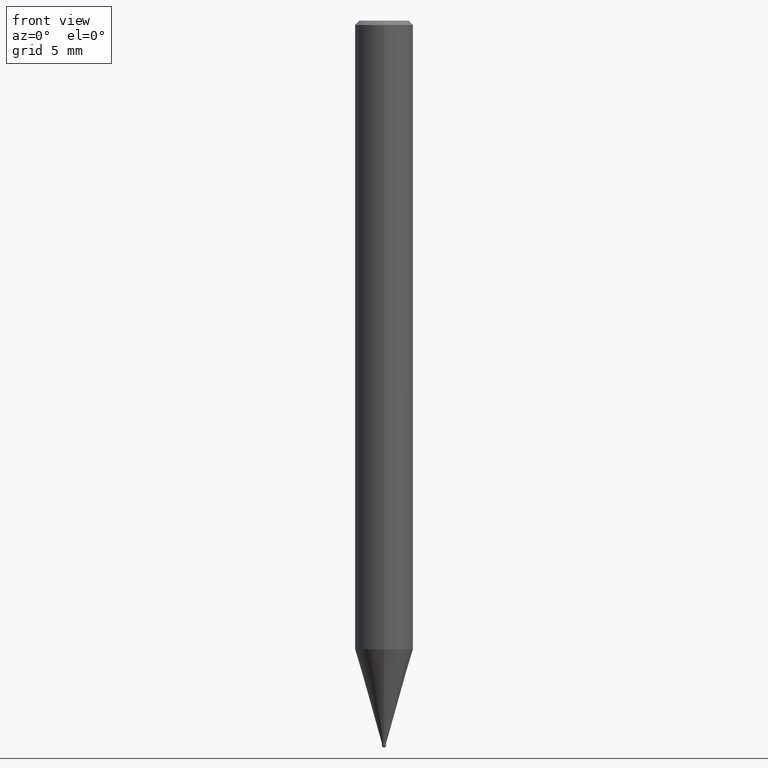
[diagram: clean part render]
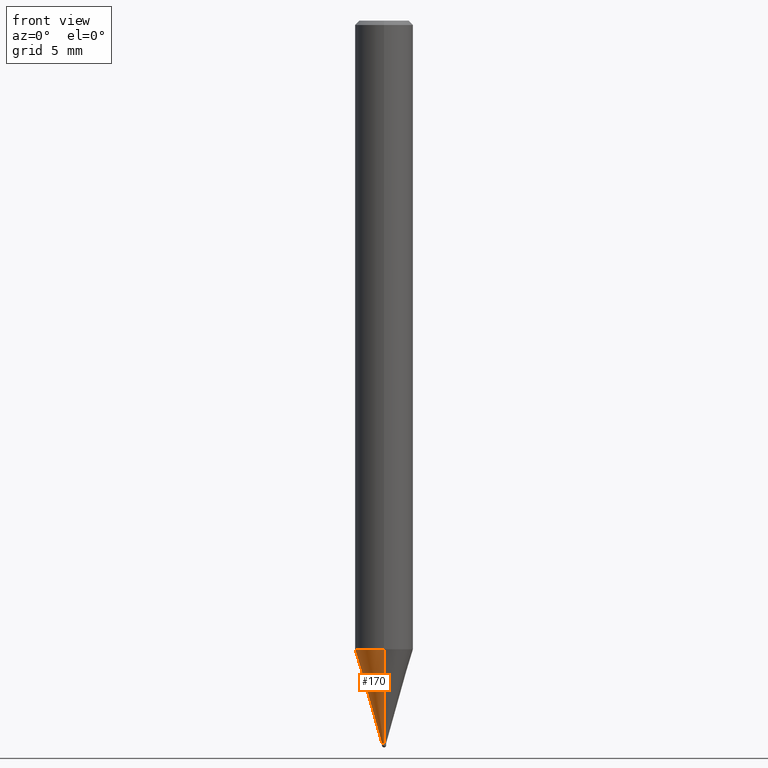
[diagram: same view with one face highlighted and labeled with its STEP entity id]
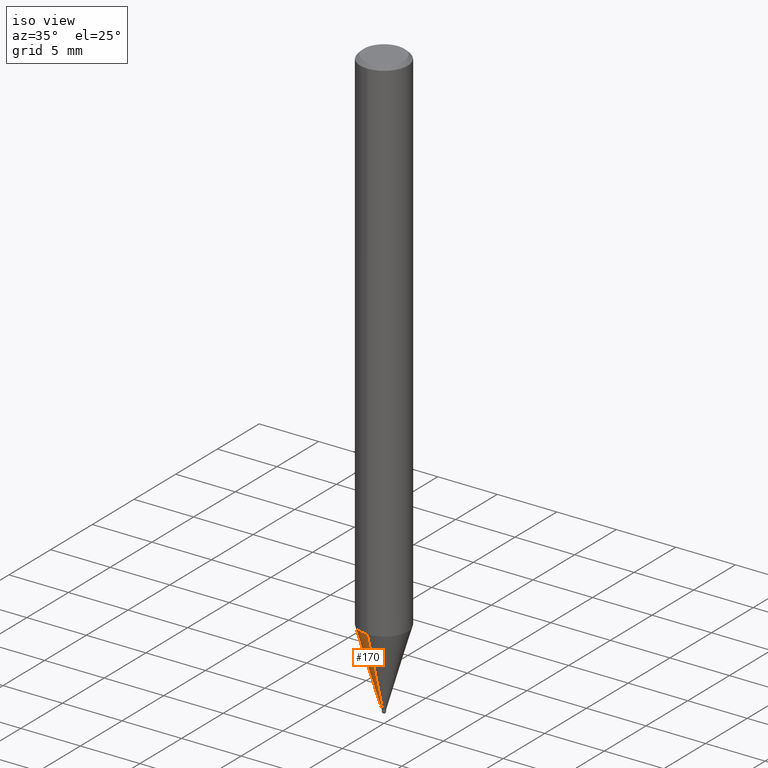
[diagram: same view with one face highlighted and labeled with its STEP entity id]
A machine part, front view. The second image highlights one B-rep face of the part: STEP entity #170.
A second angle (iso view) of the same face is appended — the face is thin or edge-on in the first view.
In plain terms, the highlighted conical surface has half-angle 15.999 deg.
Its self-contained STEP definition (entity closure, byte-faithful):
#94=EDGE_CURVE('',#164,#182,#221,.T.);
#98=EDGE_CURVE('',#182,#126,#226,.T.);
#106=EDGE_CURVE('',#108,#126,#235,.T.);
#108=VERTEX_POINT('',#237);
#126=VERTEX_POINT('',#257);
#164=VERTEX_POINT('',#300);
#170=ADVANCED_FACE('',(#306),#307,.T.);
#176=EDGE_CURVE('',#108,#164,#315,.T.);
#182=VERTEX_POINT('',#321);
#221=CIRCLE('',#354,1.99995);
#226=LINE('',#360,#361);
#235=CIRCLE('',#373,0.14995);
#237=CARTESIAN_POINT('',(1.83629722755666E-017,-0.14995,-49.7));
#257=CARTESIAN_POINT('',(0.0,0.14995,-49.7));
#300=CARTESIAN_POINT('',(2.44915147732706E-016,-1.99995,-43.248));
#306=FACE_OUTER_BOUND('',#462,.T.);
#307=CONICAL_SURFACE('',#463,1.07495,0.279241047070178);
#315=LINE('',#472,#473);
#321=CARTESIAN_POINT('',(0.0,1.99995,-43.248));
#354=AXIS2_PLACEMENT_3D('',#513,#514,#515);
#360=CARTESIAN_POINT('',(-1.31639060004136E-016,1.07495,-46.474));
#361=VECTOR('',#522,1.0);
#373=AXIS2_PLACEMENT_3D('',#530,#531,#532);
#462=EDGE_LOOP('',(#612,#613,#614,#615));
#463=AXIS2_PLACEMENT_3D('',#616,#617,#618);
#472=CARTESIAN_POINT('',(1.31639060004136E-016,-1.07495,-46.474));
#473=VECTOR('',#633,1.0);
#513=CARTESIAN_POINT('',(0.0,0.0,-43.248));
#514=DIRECTION('',(0.0,0.0,-1.0));
#515=DIRECTION('',(0.0,1.0,0.0));
#522=DIRECTION('',(3.37533562982631E-017,-0.275626173201767,-0.961264902431244));
#530=CARTESIAN_POINT('',(0.0,0.0,-49.7));
#531=DIRECTION('',(0.0,0.0,-1.0));
#532=DIRECTION('',(0.0,1.0,0.0));
#612=ORIENTED_EDGE('',*,*,#98,.T.);
#613=ORIENTED_EDGE('',*,*,#106,.F.);
#614=ORIENTED_EDGE('',*,*,#176,.T.);
#615=ORIENTED_EDGE('',*,*,#94,.T.);
#616=CARTESIAN_POINT('',(0.0,0.0,-46.474));
#617=DIRECTION('',(-0.0,-0.0,1.0));
#618=DIRECTION('',(0.0,1.0,0.0));
#633=DIRECTION('',(3.37533562982631E-017,-0.275626173201767,0.961264902431244));